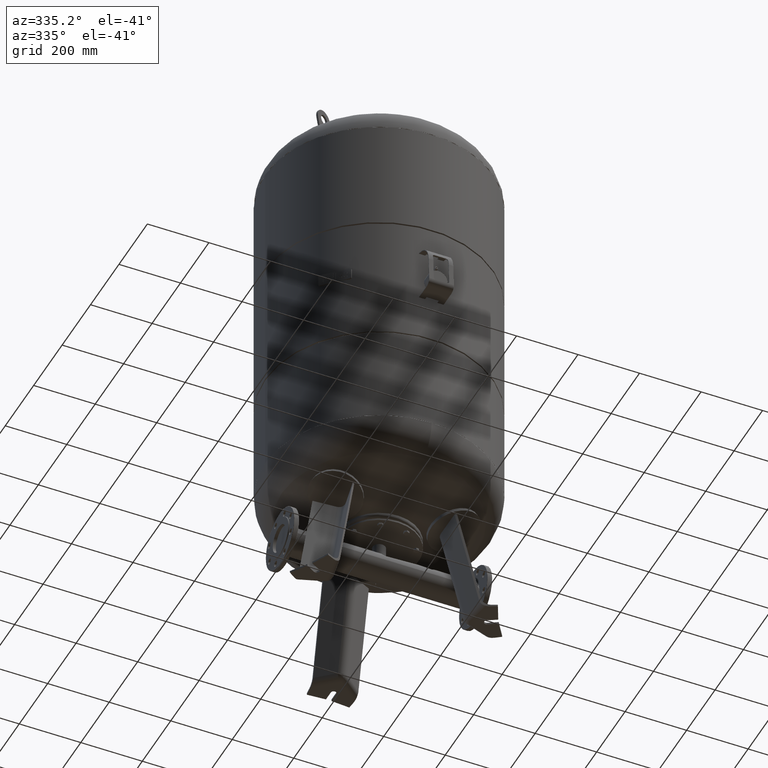
[diagram: clean part render]
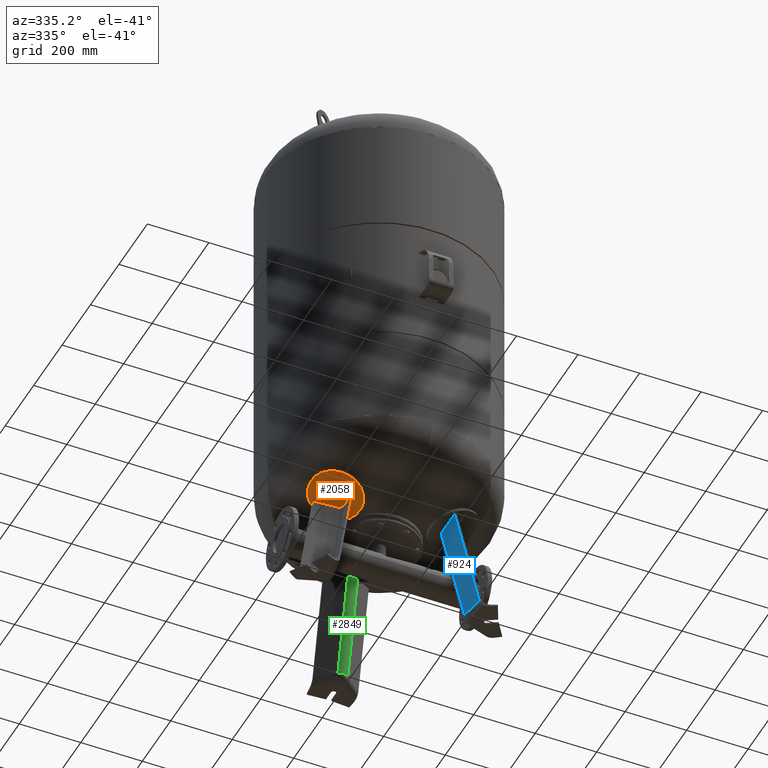
[diagram: same view with three faces highlighted in distinct colors, each labeled with its STEP entity id]
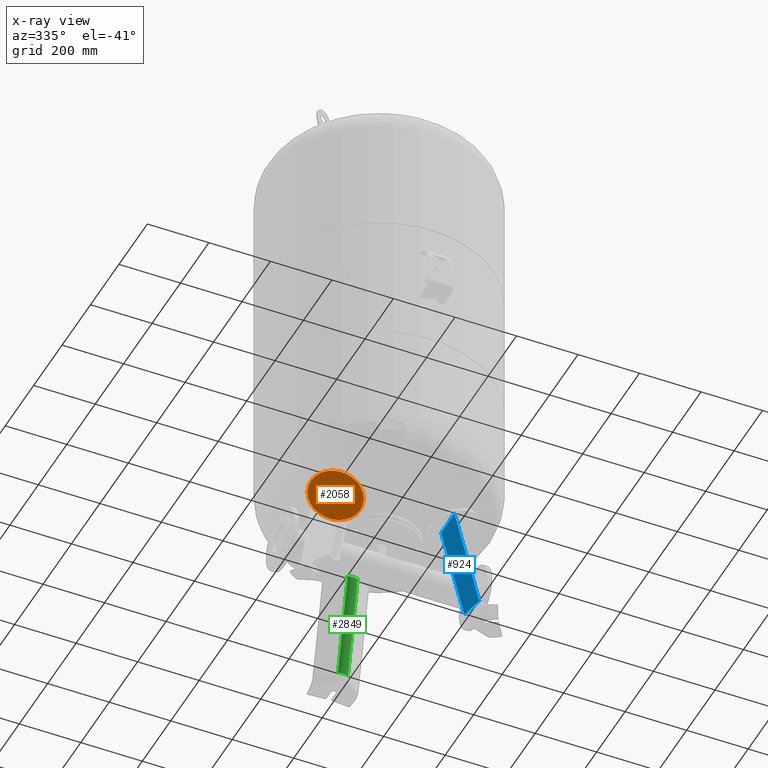
[diagram: x-ray of the same camera — body ghosted, the three highlighted faces saturated]
A machine part, auxiliary view with three faces highlighted in distinct colors.
The next image is the same camera in x-ray (body ghosted, the three faces saturated) — at least one of them is partly hidden behind the body in this view.
Their STEP definitions:

[orange] entity #2058 — the highlighted spherical surface has radius 594 mm.
#1966=CARTESIAN_POINT('',(-261.389877442692750,-150.913515924147670,393.757372581269070));
#1967=VERTEX_POINT('',#1966);
#1976=CARTESIAN_POINT('',(-123.944135252869760,-71.559179671885659,332.834821158567990));
#1977=VERTEX_POINT('',#1976);
#1978=CARTESIAN_POINT('',(-192.667006347781240,-111.236347798016650,363.296096869918470));
#1979=DIRECTION('',(-0.310355748208370,-0.179183974772650,-0.933580426497202));
#1980=DIRECTION('',(-0.808504365822488,-0.466790213248600,0.358367949545300));
#1981=AXIS2_PLACEMENT_3D('',#1978,#1979,#1980);
#1982=CIRCLE('',#1981,85.000000000000014);
#1983=EDGE_CURVE('',#1977,#1967,#1982,.T.);
#2039=CARTESIAN_POINT('',(-192.667006347781240,-111.236347798016650,363.296096869918470));
#2040=DIRECTION('',(-0.310355748208370,-0.179183974772650,-0.933580426497202));
#2041=DIRECTION('',(-0.808504365822488,-0.466790213248600,0.358367949545300));
#2042=AXIS2_PLACEMENT_3D('',#2039,#2040,#2041);
#2043=CIRCLE('',#2042,85.000000000000014);
#2044=EDGE_CURVE('',#1967,#1977,#2043,.T.);
#2049=CARTESIAN_POINT('',(-10.212929534670195,-5.896437435222481,912.135793993800230));
#2050=DIRECTION('',(-0.499999999999999,0.866025403784439,-1.554724E-016));
#2051=DIRECTION('',(-0.808504365822488,-0.466790213248600,0.358367949545300));
#2052=AXIS2_PLACEMENT_3D('',#2049,#2050,#2051);
#2053=SPHERICAL_SURFACE('',#2052,594.0);
#2054=ORIENTED_EDGE('',*,*,#2044,.T.);
#2055=ORIENTED_EDGE('',*,*,#1983,.T.);
#2056=EDGE_LOOP('',(#2054,#2055));
#2057=FACE_OUTER_BOUND('',#2056,.T.);
#2058=ADVANCED_FACE('',(#2057),#2053,.T.);

[blue] entity #924 — the highlighted planar face has unit normal (-0.9697, -0.1854, -0.1588).
#296=CARTESIAN_POINT('',(152.493107836385010,-106.674705315852380,345.982061508122970));
#297=VERTEX_POINT('',#296);
#313=CARTESIAN_POINT('',(162.367665870317950,-178.613505168794290,369.683830982884900));
#314=VERTEX_POINT('',#313);
#315=CARTESIAN_POINT('',(162.367665870317950,-178.613505168794290,369.683830982884900));
#316=CARTESIAN_POINT('',(160.649463305811080,-165.333219986767010,364.669037481009180));
#317=CARTESIAN_POINT('',(158.872911095725750,-152.034252945903460,359.988747504562130));
#318=CARTESIAN_POINT('',(156.048713479697970,-131.566367909792430,353.334982197884130));
#319=CARTESIAN_POINT('',(155.038434818138340,-124.369933104338970,351.101192125903880));
#320=CARTESIAN_POINT('',(153.509677728166280,-113.682305909172340,347.956934926011460));
#321=CARTESIAN_POINT('',(153.003537404700890,-110.175965198482290,346.953435462919910));
#322=CARTESIAN_POINT('',(152.493107836385010,-106.674705315852380,345.982061508122970));
#323=B_SPLINE_CURVE_WITH_KNOTS('',3,(#315,#316,#317,#318,#319,#320,#321,#322),.UNSPECIFIED.,.F.,.U.,(4,2,2,4),(536.762478861198470,540.755951889067660,542.927906845961390,543.990518214376830),.UNSPECIFIED.);
#324=EDGE_CURVE('',#314,#297,#323,.T.);
#405=CARTESIAN_POINT('',(226.547657155192920,-215.667840413704790,21.029948423057292));
#406=VERTEX_POINT('',#405);
#414=CARTESIAN_POINT('',(212.310092040547830,-141.210057248237430,21.029948423057292));
#415=VERTEX_POINT('',#414);
#416=CARTESIAN_POINT('',(226.547657155192920,-215.667840413704790,21.029948423057292));
#417=DIRECTION('',(-0.187813845079448,0.982204642422582,0.0));
#418=VECTOR('',#417,75.806792138366561);
#419=LINE('',#416,#418);
#420=EDGE_CURVE('',#406,#415,#419,.T.);
#895=CARTESIAN_POINT('',(212.310092040547830,-141.210057248237430,21.029948423057292));
#896=DIRECTION('',(-0.180056805991956,0.103955845408880,0.978147600733805));
#897=VECTOR('',#896,332.211736594034330);
#898=LINE('',#895,#897);
#899=EDGE_CURVE('',#415,#297,#898,.T.);
#908=CARTESIAN_POINT('',(242.887508103022530,-225.101657756952590,-67.735293817669458));
#909=DIRECTION('',(-0.969740897595359,-0.185430570007243,-0.158802063077709));
#910=DIRECTION('',(0.180056805991956,-0.103955845408880,-0.978147600733806));
#911=AXIS2_PLACEMENT_3D('',#908,#909,#910);
#912=PLANE('',#911);
#913=CARTESIAN_POINT('',(226.547657155192920,-215.667840413704790,21.029948423057292));
#914=DIRECTION('',(-0.180056805991956,0.103955845408880,0.978147600733806));
#915=VECTOR('',#914,356.443017698216240);
#916=LINE('',#913,#915);
#917=EDGE_CURVE('',#406,#314,#916,.T.);
#918=ORIENTED_EDGE('',*,*,#917,.T.);
#919=ORIENTED_EDGE('',*,*,#324,.T.);
#920=ORIENTED_EDGE('',*,*,#899,.F.);
#921=ORIENTED_EDGE('',*,*,#420,.F.);
#922=EDGE_LOOP('',(#918,#919,#920,#921));
#923=FACE_OUTER_BOUND('',#922,.T.);
#924=ADVANCED_FACE('',(#923),#912,.T.);

[green] entity #2849 — the highlighted cylindrical surface (edge-blend (fillet) strip) has radius 25 mm, axis along (-0, -0.2079, 0.9781).
#2131=CARTESIAN_POINT('',(-2.138261E-014,248.694895977767430,19.802207729555999));
#2132=VERTEX_POINT('',#2131);
#2142=CARTESIAN_POINT('',(-16.136450826554544,254.470961811045530,21.029948423057281));
#2143=VERTEX_POINT('',#2142);
#2144=CARTESIAN_POINT('',(-4.911686E-015,273.148585996112560,24.999999999999993));
#2145=DIRECTION('',(1.400401E-016,0.207911690817760,-0.978147600733806));
#2146=DIRECTION('',(-2.518401E-016,-0.978147600733806,-0.207911690817760));
#2147=AXIS2_PLACEMENT_3D('',#2144,#2145,#2146);
#2148=CIRCLE('',#2147,24.999999999999996);
#2149=EDGE_CURVE('',#2132,#2143,#2148,.T.);
#2225=CARTESIAN_POINT('',(-16.136450826554579,185.400257946275450,345.982061508122970));
#2226=VERTEX_POINT('',#2225);
#2238=CARTESIAN_POINT('',(16.136450826554498,185.400257946275500,345.982061508122970));
#2239=VERTEX_POINT('',#2238);
#2240=CARTESIAN_POINT('',(16.136450826554498,185.400257946275500,345.982061508122970));
#2241=CARTESIAN_POINT('',(14.555775092551761,184.152165962499710,345.429145962679570));
#2242=CARTESIAN_POINT('',(12.810505538897678,183.089705804688180,344.952084452630170));
#2243=CARTESIAN_POINT('',(8.442077518937667,181.107290926088440,344.055152810907370));
#2244=CARTESIAN_POINT('',(5.756070836645680,180.368999140839120,343.715242767201690));
#2245=CARTESIAN_POINT('',(-0.180766688588815,179.703328353215650,343.408859612798040));
#2246=CARTESIAN_POINT('',(-3.390505565065812,179.916363902073640,343.507987721230450));
#2247=CARTESIAN_POINT('',(-9.418469960354551,181.421029379104910,344.196954931562570));
#2248=CARTESIAN_POINT('',(-12.188226159975288,182.652021590054150,344.757900145445770));
#2249=CARTESIAN_POINT('',(-15.159271108258450,184.657846874962130,345.652583626944020));
#2250=CARTESIAN_POINT('',(-15.655917985642839,185.020832126177450,345.813972587593130));
#2251=CARTESIAN_POINT('',(-16.136450826554579,185.400257946275450,345.982061508122970));
#2252=B_SPLINE_CURVE_WITH_KNOTS('',3,(#2240,#2241,#2242,#2243,#2244,#2245,#2246,#2247,#2248,#2249,#2250,#2251),.UNSPECIFIED.,.F.,.U.,(4,2,2,2,2,4),(6.172937918089914,6.800238516469003,7.636613955647756,8.594410053537509,9.511526200467737,9.702438943990535),.UNSPECIFIED.);
#2253=EDGE_CURVE('',#2239,#2226,#2252,.T.);
#2356=CARTESIAN_POINT('',(16.136450826554533,254.470961811045530,21.029948423057292));
#2357=VERTEX_POINT('',#2356);
#2404=CARTESIAN_POINT('',(-4.911686E-015,273.148585996112560,24.999999999999993));
#2405=DIRECTION('',(1.400401E-016,0.207911690817760,-0.978147600733806));
#2406=DIRECTION('',(-2.518401E-016,-0.978147600733806,-0.207911690817760));
#2407=AXIS2_PLACEMENT_3D('',#2404,#2405,#2406);
#2408=CIRCLE('',#2407,24.999999999999996);
#2409=EDGE_CURVE('',#2357,#2132,#2408,.T.);
#2820=CARTESIAN_POINT('',(-16.136450826554579,185.400257946275450,345.982061508122970));
#2821=DIRECTION('',(1.069412E-016,0.207911690817760,-0.978147600733805));
#2822=VECTOR('',#2821,332.211736594034330);
#2823=LINE('',#2820,#2822);
#2824=EDGE_CURVE('',#2226,#2143,#2823,.T.);
#2832=CARTESIAN_POINT('',(5.109274E-015,292.786054491925430,-67.387025559335640));
#2833=DIRECTION('',(-1.400401E-016,-0.207911690817760,0.978147600733806));
#2834=DIRECTION('',(-2.518401E-016,-0.978147600733806,-0.207911690817760));
#2835=AXIS2_PLACEMENT_3D('',#2832,#2833,#2834);
#2836=CYLINDRICAL_SURFACE('',#2835,25.0);
#2837=CARTESIAN_POINT('',(16.136450826554533,254.470961811045530,21.029948423057292));
#2838=DIRECTION('',(-1.069412E-016,-0.207911690817760,0.978147600733805));
#2839=VECTOR('',#2838,332.211736594034330);
#2840=LINE('',#2837,#2839);
#2841=EDGE_CURVE('',#2357,#2239,#2840,.T.);
#2842=ORIENTED_EDGE('',*,*,#2841,.T.);
#2843=ORIENTED_EDGE('',*,*,#2253,.T.);
#2844=ORIENTED_EDGE('',*,*,#2824,.T.);
#2845=ORIENTED_EDGE('',*,*,#2149,.F.);
#2846=ORIENTED_EDGE('',*,*,#2409,.F.);
#2847=EDGE_LOOP('',(#2842,#2843,#2844,#2845,#2846));
#2848=FACE_OUTER_BOUND('',#2847,.T.);
#2849=ADVANCED_FACE('',(#2848),#2836,.T.);